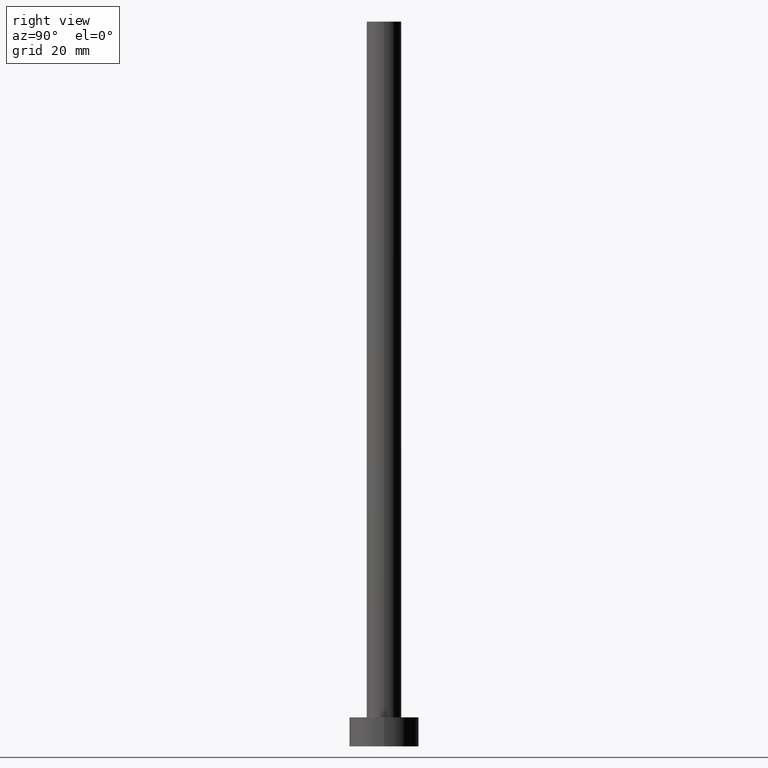
[diagram: clean part render]
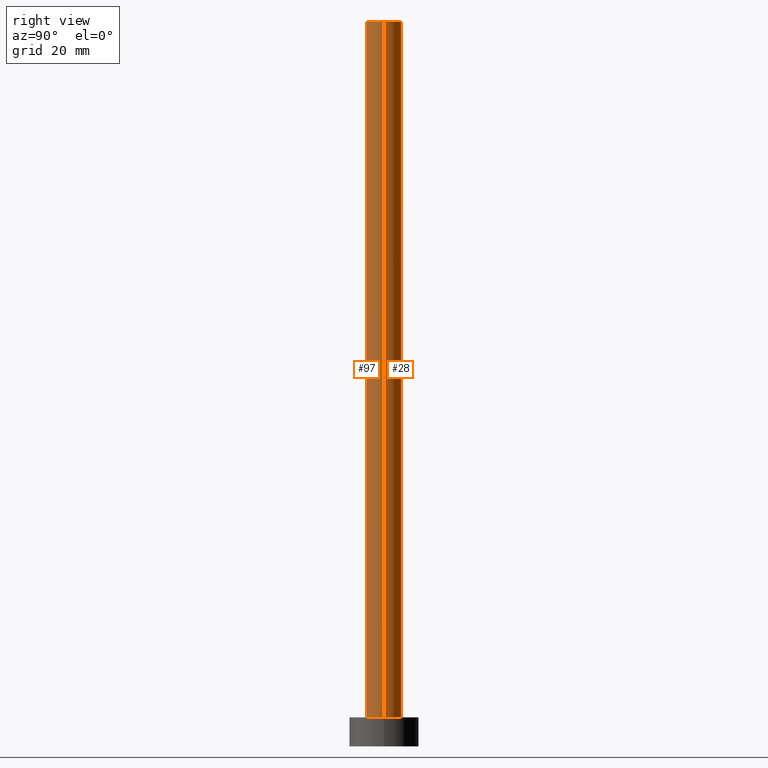
[diagram: same view with one multi-face feature highlighted, each face labeled with its STEP entity id]
A machine part, right view. The highlighted faces form ONE feature: a constant-radius fillet chain: 2 tangent blend faces with common blend radius 3 mm. The faces share edges in the B-rep.
Their STEP definitions:
[1] entity #28 (Cylinder):
#6 = DIRECTION ( 'NONE',  ( -0.000000000000000000, -0.000000000000000000, -1.000000000000000000 ) ) ;
#20 = DIRECTION ( 'NONE',  ( -0.000000000000000000, -0.000000000000000000, -1.000000000000000000 ) ) ;
#28 = ADVANCED_FACE ( 'NONE', ( #183 ), #166, .T. ) ;
#29 = ORIENTED_EDGE ( 'NONE', *, *, #153, .T. ) ;
#47 = CARTESIAN_POINT ( 'NONE',  ( 0.000000000000000000, 0.000000000000000000, 125.0000000000000000 ) ) ;
#61 = CARTESIAN_POINT ( 'NONE',  ( -3.000000000000000444, 0.000000000000000000, 125.0000000000000000 ) ) ;
#70 = ORIENTED_EDGE ( 'NONE', *, *, #124, .F. ) ;
#76 = CARTESIAN_POINT ( 'NONE',  ( 3.000000000000000444, 3.673940397442060361E-16, 125.0000000000000000 ) ) ;
#81 = CARTESIAN_POINT ( 'NONE',  ( 0.000000000000000000, 0.000000000000000000, 5.000000000000000000 ) ) ;
#89 = VERTEX_POINT ( 'NONE', #76 ) ;
#91 = CARTESIAN_POINT ( 'NONE',  ( 3.000000000000000444, 3.673940397442060361E-16, 125.0000000000000000 ) ) ;
#93 = CIRCLE ( 'NONE', #140, 3.000000000000000444 ) ;
#96 = CARTESIAN_POINT ( 'NONE',  ( 3.000000000000000444, 3.673940397442060361E-16, 5.000000000000000000 ) ) ;
#99 = VECTOR ( 'NONE', #6, 1000.000000000000000 ) ;
#107 = VERTEX_POINT ( 'NONE', #61 ) ;
#118 = DIRECTION ( 'NONE',  ( 0.000000000000000000, 0.000000000000000000, 1.000000000000000000 ) ) ;
#124 = EDGE_CURVE ( 'NONE', #107, #145, #134, .T. ) ;
#129 = EDGE_LOOP ( 'NONE', ( #143, #29, #151, #70 ) ) ;
#134 = LINE ( 'NONE', #219, #147 ) ;
#140 = AXIS2_PLACEMENT_3D ( 'NONE', #47, #118, #201 ) ;
#142 = EDGE_CURVE ( 'NONE', #186, #145, #175, .T. ) ;
#143 = ORIENTED_EDGE ( 'NONE', *, *, #210, .F. ) ;
#145 = VERTEX_POINT ( 'NONE', #190 ) ;
#147 = VECTOR ( 'NONE', #20, 1000.000000000000000 ) ;
#148 = CARTESIAN_POINT ( 'NONE',  ( 0.000000000000000000, 0.000000000000000000, 125.0000000000000000 ) ) ;
#151 = ORIENTED_EDGE ( 'NONE', *, *, #142, .T. ) ;
#153 = EDGE_CURVE ( 'NONE', #89, #186, #240, .T. ) ;
#158 = DIRECTION ( 'NONE',  ( 0.000000000000000000, 0.000000000000000000, 1.000000000000000000 ) ) ;
#166 = CYLINDRICAL_SURFACE ( 'NONE', #205, 3.000000000000000444 ) ;
#175 = CIRCLE ( 'NONE', #217, 3.000000000000000444 ) ;
#179 = DIRECTION ( 'NONE',  ( -1.000000000000000000, 0.000000000000000000, 0.000000000000000000 ) ) ;
#183 = FACE_OUTER_BOUND ( 'NONE', #129, .T. ) ;
#186 = VERTEX_POINT ( 'NONE', #96 ) ;
#190 = CARTESIAN_POINT ( 'NONE',  ( -3.000000000000000444, 0.000000000000000000, 5.000000000000000000 ) ) ;
#201 = DIRECTION ( 'NONE',  ( 1.000000000000000000, 0.000000000000000000, 0.000000000000000000 ) ) ;
#205 = AXIS2_PLACEMENT_3D ( 'NONE', #148, #230, #179 ) ;
#210 = EDGE_CURVE ( 'NONE', #89, #107, #93, .T. ) ;
#212 = DIRECTION ( 'NONE',  ( 1.000000000000000000, 0.000000000000000000, 0.000000000000000000 ) ) ;
#217 = AXIS2_PLACEMENT_3D ( 'NONE', #81, #158, #212 ) ;
#219 = CARTESIAN_POINT ( 'NONE',  ( -3.000000000000000444, 0.000000000000000000, 125.0000000000000000 ) ) ;
#230 = DIRECTION ( 'NONE',  ( -0.000000000000000000, -0.000000000000000000, -1.000000000000000000 ) ) ;
#240 = LINE ( 'NONE', #91, #99 ) ;
[2] entity #97 (Cylinder):
#6 = DIRECTION ( 'NONE',  ( -0.000000000000000000, -0.000000000000000000, -1.000000000000000000 ) ) ;
#14 = EDGE_CURVE ( 'NONE', #145, #186, #194, .T. ) ;
#20 = DIRECTION ( 'NONE',  ( -0.000000000000000000, -0.000000000000000000, -1.000000000000000000 ) ) ;
#32 = CARTESIAN_POINT ( 'NONE',  ( 0.000000000000000000, 0.000000000000000000, 5.000000000000000000 ) ) ;
#42 = DIRECTION ( 'NONE',  ( 0.000000000000000000, 0.000000000000000000, 1.000000000000000000 ) ) ;
#61 = CARTESIAN_POINT ( 'NONE',  ( -3.000000000000000444, 0.000000000000000000, 125.0000000000000000 ) ) ;
#67 = EDGE_CURVE ( 'NONE', #107, #89, #92, .T. ) ;
#76 = CARTESIAN_POINT ( 'NONE',  ( 3.000000000000000444, 3.673940397442060361E-16, 125.0000000000000000 ) ) ;
#79 = FACE_OUTER_BOUND ( 'NONE', #232, .T. ) ;
#86 = ORIENTED_EDGE ( 'NONE', *, *, #67, .F. ) ;
#89 = VERTEX_POINT ( 'NONE', #76 ) ;
#91 = CARTESIAN_POINT ( 'NONE',  ( 3.000000000000000444, 3.673940397442060361E-16, 125.0000000000000000 ) ) ;
#92 = CIRCLE ( 'NONE', #104, 3.000000000000000444 ) ;
#96 = CARTESIAN_POINT ( 'NONE',  ( 3.000000000000000444, 3.673940397442060361E-16, 5.000000000000000000 ) ) ;
#97 = ADVANCED_FACE ( 'NONE', ( #79 ), #154, .T. ) ;
#99 = VECTOR ( 'NONE', #6, 1000.000000000000000 ) ;
#102 = DIRECTION ( 'NONE',  ( 1.000000000000000000, 0.000000000000000000, 0.000000000000000000 ) ) ;
#104 = AXIS2_PLACEMENT_3D ( 'NONE', #115, #42, #109 ) ;
#107 = VERTEX_POINT ( 'NONE', #61 ) ;
#109 = DIRECTION ( 'NONE',  ( 1.000000000000000000, 0.000000000000000000, 0.000000000000000000 ) ) ;
#115 = CARTESIAN_POINT ( 'NONE',  ( 0.000000000000000000, 0.000000000000000000, 125.0000000000000000 ) ) ;
#124 = EDGE_CURVE ( 'NONE', #107, #145, #134, .T. ) ;
#130 = DIRECTION ( 'NONE',  ( 0.000000000000000000, 0.000000000000000000, 1.000000000000000000 ) ) ;
#134 = LINE ( 'NONE', #219, #147 ) ;
#145 = VERTEX_POINT ( 'NONE', #190 ) ;
#147 = VECTOR ( 'NONE', #20, 1000.000000000000000 ) ;
#153 = EDGE_CURVE ( 'NONE', #89, #186, #240, .T. ) ;
#154 = CYLINDRICAL_SURFACE ( 'NONE', #180, 3.000000000000000444 ) ;
#155 = DIRECTION ( 'NONE',  ( -0.000000000000000000, -0.000000000000000000, -1.000000000000000000 ) ) ;
#168 = ORIENTED_EDGE ( 'NONE', *, *, #153, .F. ) ;
#169 = CARTESIAN_POINT ( 'NONE',  ( 0.000000000000000000, 0.000000000000000000, 125.0000000000000000 ) ) ;
#180 = AXIS2_PLACEMENT_3D ( 'NONE', #169, #155, #238 ) ;
#186 = VERTEX_POINT ( 'NONE', #96 ) ;
#190 = CARTESIAN_POINT ( 'NONE',  ( -3.000000000000000444, 0.000000000000000000, 5.000000000000000000 ) ) ;
#194 = CIRCLE ( 'NONE', #222, 3.000000000000000444 ) ;
#219 = CARTESIAN_POINT ( 'NONE',  ( -3.000000000000000444, 0.000000000000000000, 125.0000000000000000 ) ) ;
#222 = AXIS2_PLACEMENT_3D ( 'NONE', #32, #130, #102 ) ;
#227 = ORIENTED_EDGE ( 'NONE', *, *, #124, .T. ) ;
#232 = EDGE_LOOP ( 'NONE', ( #168, #86, #227, #234 ) ) ;
#234 = ORIENTED_EDGE ( 'NONE', *, *, #14, .T. ) ;
#238 = DIRECTION ( 'NONE',  ( -1.000000000000000000, 0.000000000000000000, 0.000000000000000000 ) ) ;
#240 = LINE ( 'NONE', #91, #99 ) ;